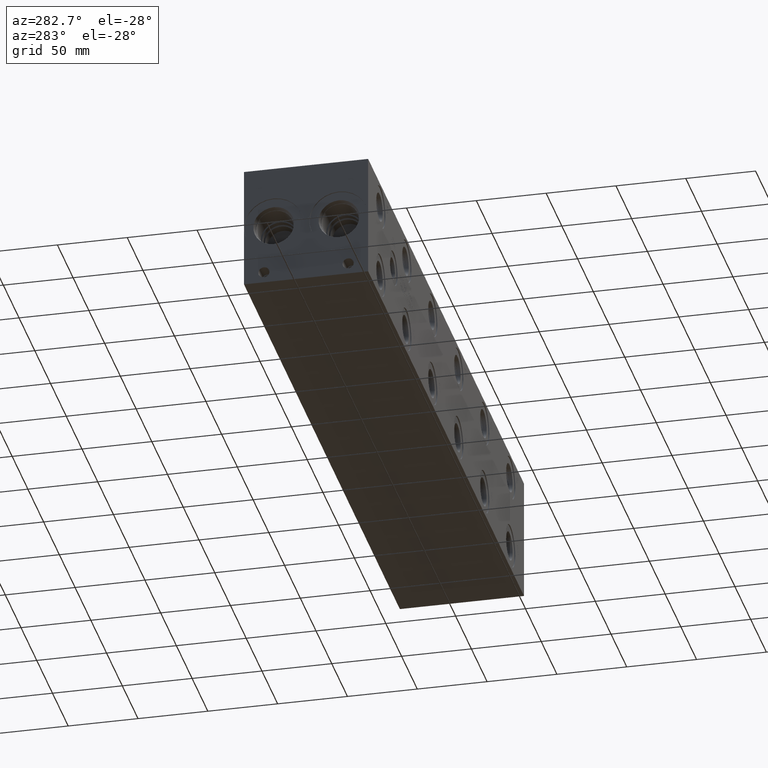
[diagram: clean part render]
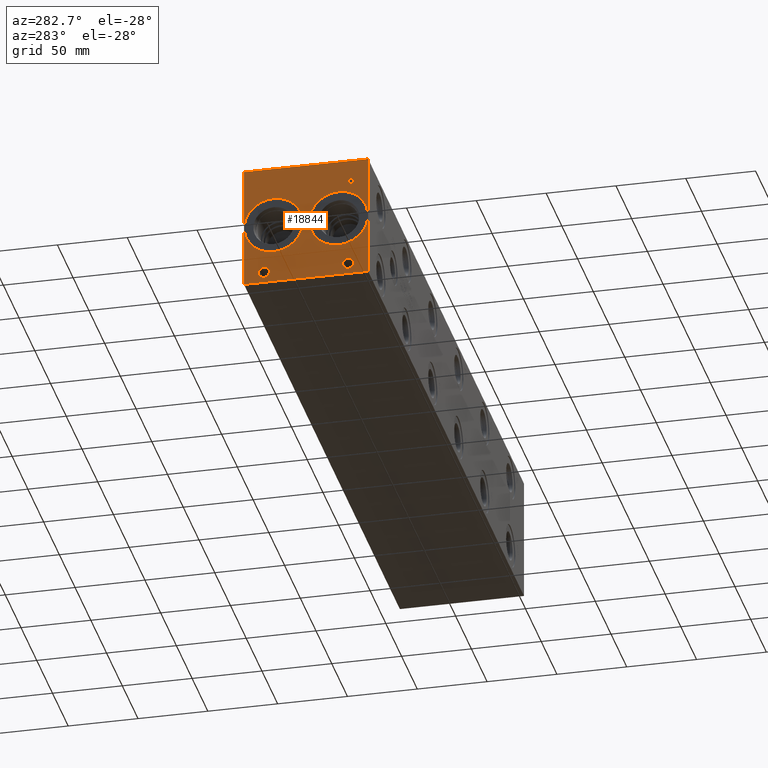
[diagram: same view with one face highlighted and labeled with its STEP entity id]
A machine part, auxiliary view. The second image highlights one B-rep face of the part: STEP entity #18844.
In plain terms, the highlighted planar face has unit normal (-1, 0, 0).
Its self-contained STEP definition (entity closure, byte-faithful):
#316=CIRCLE('',#19888,3.9624);
#317=CIRCLE('',#19889,3.9624);
#318=CIRCLE('',#19890,3.9624);
#319=CIRCLE('',#19891,3.9624);
#320=CIRCLE('',#19892,21.0185);
#321=CIRCLE('',#19893,21.0185);
#322=CIRCLE('',#19894,21.0185);
#323=CIRCLE('',#19895,21.0185);
#959=FACE_BOUND('',#2987,.T.);
#960=FACE_BOUND('',#2988,.T.);
#961=FACE_BOUND('',#2989,.T.);
#962=FACE_BOUND('',#2990,.T.);
#963=FACE_BOUND('',#2991,.T.);
#964=FACE_BOUND('',#2992,.T.);
#1177=B_SPLINE_CURVE_WITH_KNOTS('',2,(#26209,#26210,#26211,#26212),
 .UNSPECIFIED.,.F.,.F.,(3,1,3),(0.,1.,2.),.UNSPECIFIED.);
#1179=B_SPLINE_CURVE_WITH_KNOTS('',2,(#26230,#26231,#26232,#26233),
 .UNSPECIFIED.,.F.,.F.,(3,1,3),(0.,1.,2.),.UNSPECIFIED.);
#1181=B_SPLINE_CURVE_WITH_KNOTS('',2,(#26279,#26280,#26281,#26282),
 .UNSPECIFIED.,.F.,.F.,(3,1,3),(0.,1.,2.),.UNSPECIFIED.);
#1183=B_SPLINE_CURVE_WITH_KNOTS('',2,(#26297,#26298,#26299,#26300),
 .UNSPECIFIED.,.F.,.F.,(3,1,3),(0.,1.,2.),.UNSPECIFIED.);
#1941=FACE_OUTER_BOUND('',#2986,.T.);
#2986=EDGE_LOOP('',(#12390,#12391,#12392,#12393));
#2987=EDGE_LOOP('',(#12394,#12395,#12396,#12397,#12398,#12399,#12400,#12401));
#2988=EDGE_LOOP('',(#12402,#12403));
#2989=EDGE_LOOP('',(#12404,#12405));
#2990=EDGE_LOOP('',(#12406,#12407));
#2991=EDGE_LOOP('',(#12408,#12409));
#2992=EDGE_LOOP('',(#12410,#12411,#12412,#12413,#12414,#12415,#12416,#12417,
#12418));
#4224=LINE('',#26059,#5855);
#4228=LINE('',#26067,#5859);
#4231=LINE('',#26073,#5862);
#4234=LINE('',#26079,#5865);
#4237=LINE('',#26085,#5868);
#4240=LINE('',#26091,#5871);
#4243=LINE('',#26097,#5874);
#4246=LINE('',#26102,#5877);
#4264=LINE('',#26242,#5895);
#4267=LINE('',#26248,#5898);
#4270=LINE('',#26254,#5901);
#4273=LINE('',#26260,#5904);
#4276=LINE('',#26266,#5907);
#4280=LINE('',#26309,#5911);
#4281=LINE('',#26311,#5912);
#4282=LINE('',#26313,#5913);
#4283=LINE('',#26314,#5914);
#5855=VECTOR('',#21395,10.);
#5859=VECTOR('',#21401,10.);
#5862=VECTOR('',#21406,10.);
#5865=VECTOR('',#21411,10.);
#5868=VECTOR('',#21416,10.);
#5871=VECTOR('',#21421,10.);
#5874=VECTOR('',#21426,10.);
#5877=VECTOR('',#21431,10.);
#5895=VECTOR('',#21459,10.);
#5898=VECTOR('',#21464,10.);
#5901=VECTOR('',#21469,10.);
#5904=VECTOR('',#21474,10.);
#5907=VECTOR('',#21479,10.);
#5911=VECTOR('',#21487,10.);
#5912=VECTOR('',#21488,10.);
#5913=VECTOR('',#21489,10.);
#5914=VECTOR('',#21490,10.);
#7486=VERTEX_POINT('',#26057);
#7487=VERTEX_POINT('',#26058);
#7490=VERTEX_POINT('',#26066);
#7492=VERTEX_POINT('',#26072);
#7494=VERTEX_POINT('',#26078);
#7496=VERTEX_POINT('',#26084);
#7498=VERTEX_POINT('',#26090);
#7500=VERTEX_POINT('',#26096);
#7516=VERTEX_POINT('',#26207);
#7517=VERTEX_POINT('',#26208);
#7520=VERTEX_POINT('',#26229);
#7522=VERTEX_POINT('',#26241);
#7524=VERTEX_POINT('',#26247);
#7526=VERTEX_POINT('',#26253);
#7528=VERTEX_POINT('',#26259);
#7530=VERTEX_POINT('',#26265);
#7532=VERTEX_POINT('',#26278);
#7534=VERTEX_POINT('',#26307);
#7535=VERTEX_POINT('',#26308);
#7536=VERTEX_POINT('',#26310);
#7537=VERTEX_POINT('',#26312);
#7538=VERTEX_POINT('',#26315);
#7539=VERTEX_POINT('',#26316);
#7540=VERTEX_POINT('',#26319);
#7541=VERTEX_POINT('',#26320);
#7542=VERTEX_POINT('',#26323);
#7543=VERTEX_POINT('',#26324);
#7544=VERTEX_POINT('',#26327);
#7545=VERTEX_POINT('',#26328);
#9441=EDGE_CURVE('',#7486,#7487,#4224,.T.);
#9445=EDGE_CURVE('',#7490,#7486,#4228,.T.);
#9448=EDGE_CURVE('',#7492,#7490,#4231,.T.);
#9451=EDGE_CURVE('',#7494,#7492,#4234,.T.);
#9454=EDGE_CURVE('',#7496,#7494,#4237,.T.);
#9457=EDGE_CURVE('',#7498,#7496,#4240,.T.);
#9460=EDGE_CURVE('',#7500,#7498,#4243,.T.);
#9463=EDGE_CURVE('',#7487,#7500,#4246,.T.);
#9486=EDGE_CURVE('',#7516,#7517,#1177,.T.);
#9490=EDGE_CURVE('',#7520,#7516,#1179,.T.);
#9493=EDGE_CURVE('',#7522,#7520,#4264,.T.);
#9496=EDGE_CURVE('',#7524,#7522,#4267,.T.);
#9499=EDGE_CURVE('',#7526,#7524,#4270,.T.);
#9502=EDGE_CURVE('',#7528,#7526,#4273,.T.);
#9505=EDGE_CURVE('',#7530,#7528,#4276,.T.);
#9508=EDGE_CURVE('',#7532,#7530,#1181,.T.);
#9511=EDGE_CURVE('',#7517,#7532,#1183,.T.);
#9513=EDGE_CURVE('',#7534,#7535,#4280,.T.);
#9514=EDGE_CURVE('',#7535,#7536,#4281,.T.);
#9515=EDGE_CURVE('',#7537,#7536,#4282,.T.);
#9516=EDGE_CURVE('',#7534,#7537,#4283,.T.);
#9517=EDGE_CURVE('',#7538,#7539,#316,.T.);
#9518=EDGE_CURVE('',#7539,#7538,#317,.T.);
#9519=EDGE_CURVE('',#7540,#7541,#318,.T.);
#9520=EDGE_CURVE('',#7541,#7540,#319,.T.);
#9521=EDGE_CURVE('',#7542,#7543,#320,.T.);
#9522=EDGE_CURVE('',#7543,#7542,#321,.T.);
#9523=EDGE_CURVE('',#7544,#7545,#322,.T.);
#9524=EDGE_CURVE('',#7545,#7544,#323,.T.);
#12390=ORIENTED_EDGE('',*,*,#9513,.T.);
#12391=ORIENTED_EDGE('',*,*,#9514,.T.);
#12392=ORIENTED_EDGE('',*,*,#9515,.F.);
#12393=ORIENTED_EDGE('',*,*,#9516,.F.);
#12394=ORIENTED_EDGE('',*,*,#9441,.T.);
#12395=ORIENTED_EDGE('',*,*,#9463,.T.);
#12396=ORIENTED_EDGE('',*,*,#9460,.T.);
#12397=ORIENTED_EDGE('',*,*,#9457,.T.);
#12398=ORIENTED_EDGE('',*,*,#9454,.T.);
#12399=ORIENTED_EDGE('',*,*,#9451,.T.);
#12400=ORIENTED_EDGE('',*,*,#9448,.T.);
#12401=ORIENTED_EDGE('',*,*,#9445,.T.);
#12402=ORIENTED_EDGE('',*,*,#9517,.T.);
#12403=ORIENTED_EDGE('',*,*,#9518,.T.);
#12404=ORIENTED_EDGE('',*,*,#9519,.T.);
#12405=ORIENTED_EDGE('',*,*,#9520,.T.);
#12406=ORIENTED_EDGE('',*,*,#9521,.T.);
#12407=ORIENTED_EDGE('',*,*,#9522,.T.);
#12408=ORIENTED_EDGE('',*,*,#9523,.T.);
#12409=ORIENTED_EDGE('',*,*,#9524,.T.);
#12410=ORIENTED_EDGE('',*,*,#9486,.T.);
#12411=ORIENTED_EDGE('',*,*,#9511,.T.);
#12412=ORIENTED_EDGE('',*,*,#9508,.T.);
#12413=ORIENTED_EDGE('',*,*,#9505,.T.);
#12414=ORIENTED_EDGE('',*,*,#9502,.T.);
#12415=ORIENTED_EDGE('',*,*,#9499,.T.);
#12416=ORIENTED_EDGE('',*,*,#9496,.T.);
#12417=ORIENTED_EDGE('',*,*,#9493,.T.);
#12418=ORIENTED_EDGE('',*,*,#9490,.T.);
#17686=PLANE('',#19887);
#18844=ADVANCED_FACE('',(#1941,#959,#960,#961,#962,#963,#964),#17686,.T.);
#19887=AXIS2_PLACEMENT_3D('',#26306,#21485,#21486);
#19888=AXIS2_PLACEMENT_3D('',#26317,#21491,#21492);
#19889=AXIS2_PLACEMENT_3D('',#26318,#21493,#21494);
#19890=AXIS2_PLACEMENT_3D('',#26321,#21495,#21496);
#19891=AXIS2_PLACEMENT_3D('',#26322,#21497,#21498);
#19892=AXIS2_PLACEMENT_3D('',#26325,#21499,#21500);
#19893=AXIS2_PLACEMENT_3D('',#26326,#21501,#21502);
#19894=AXIS2_PLACEMENT_3D('',#26329,#21503,#21504);
#19895=AXIS2_PLACEMENT_3D('',#26330,#21505,#21506);
#21395=DIRECTION('',(0.,1.,1.0524411238433E-14));
#21401=DIRECTION('',(0.,3.17280044688051E-15,-1.));
#21406=DIRECTION('',(0.,1.,4.16909044227778E-15));
#21411=DIRECTION('',(0.,0.,-1.));
#21416=DIRECTION('',(0.,-1.,-3.47984565141734E-15));
#21421=DIRECTION('',(0.,0.,1.));
#21426=DIRECTION('',(0.,1.,0.));
#21431=DIRECTION('',(0.,-3.17280044688052E-15,1.));
#21459=DIRECTION('',(0.,-1.,-5.56775304226775E-15));
#21464=DIRECTION('',(0.,-3.14708893596576E-15,1.));
#21469=DIRECTION('',(0.,1.,1.0524411238433E-14));
#21474=DIRECTION('',(0.,2.8141360485375E-15,-1.));
#21479=DIRECTION('',(0.,1.,0.));
#21485=DIRECTION('center_axis',(-1.,0.,0.));
#21486=DIRECTION('ref_axis',(0.,-1.,0.));
#21487=DIRECTION('',(0.,-1.,0.));
#21488=DIRECTION('',(0.,0.,1.));
#21489=DIRECTION('',(0.,-1.,0.));
#21490=DIRECTION('',(0.,0.,1.));
#21491=DIRECTION('center_axis',(1.,0.,0.));
#21492=DIRECTION('ref_axis',(0.,1.,0.));
#21493=DIRECTION('center_axis',(1.,0.,0.));
#21494=DIRECTION('ref_axis',(0.,1.,0.));
#21495=DIRECTION('center_axis',(1.,0.,0.));
#21496=DIRECTION('ref_axis',(0.,1.,0.));
#21497=DIRECTION('center_axis',(1.,0.,0.));
#21498=DIRECTION('ref_axis',(0.,1.,0.));
#21499=DIRECTION('center_axis',(1.,0.,0.));
#21500=DIRECTION('ref_axis',(0.,0.,1.));
#21501=DIRECTION('center_axis',(1.,0.,0.));
#21502=DIRECTION('ref_axis',(0.,0.,1.));
#21503=DIRECTION('center_axis',(1.,0.,0.));
#21504=DIRECTION('ref_axis',(0.,0.,1.));
#21505=DIRECTION('center_axis',(1.,0.,0.));
#21506=DIRECTION('ref_axis',(0.,0.,1.));
#26057=CARTESIAN_POINT('',(0.,77.548834728547,68.58));
#26058=CARTESIAN_POINT('',(0.,78.3927569200865,68.58));
#26059=CARTESIAN_POINT('',(0.,83.2244173642732,68.58));
#26066=CARTESIAN_POINT('',(0.,77.548834728547,74.1787033194815));
#26067=CARTESIAN_POINT('',(0.,77.5488347285471,37.0893516597408));
#26072=CARTESIAN_POINT('',(0.,75.4184457816119,74.1787033194815));
#26073=CARTESIAN_POINT('',(0.,82.1592228908058,74.1787033194816));
#26078=CARTESIAN_POINT('',(0.,75.4184457816119,74.9299999046326));
#26079=CARTESIAN_POINT('',(0.,75.4184457816119,37.4649999523163));
#26084=CARTESIAN_POINT('',(0.,80.5231458670216,74.9299999046326));
#26085=CARTESIAN_POINT('',(0.,84.7115729335107,74.9299999046326));
#26090=CARTESIAN_POINT('',(0.,80.5231458670216,74.1787033194815));
#26091=CARTESIAN_POINT('',(0.,80.5231458670216,37.0893516597408));
#26096=CARTESIAN_POINT('',(0.,78.3927569200865,74.1787033194815));
#26097=CARTESIAN_POINT('',(0.,83.6463784600433,74.1787033194815));
#26102=CARTESIAN_POINT('',(0.,78.3927569200866,34.29));
#26207=CARTESIAN_POINT('',(0.,10.8314327976406,74.5337681439707));
#26208=CARTESIAN_POINT('',(0.,10.074990345468,73.0157373726039));
#26209=CARTESIAN_POINT('Ctrl Pts',(0.,10.8314327976406,74.5337681439707));
#26210=CARTESIAN_POINT('Ctrl Pts',(0.,10.4763679731514,74.2919123939564));
#26211=CARTESIAN_POINT('Ctrl Pts',(0.,10.074990345468,73.5457616758269));
#26212=CARTESIAN_POINT('Ctrl Pts',(0.,10.074990345468,73.0157373726039));
#26229=CARTESIAN_POINT('',(0.,12.4935478456117,74.9299999046326));
#26230=CARTESIAN_POINT('Ctrl Pts',(0.,12.4935478456117,74.9299999046326));
#26231=CARTESIAN_POINT('Ctrl Pts',(0.,11.9275024732376,74.9299999046326));
#26232=CARTESIAN_POINT('Ctrl Pts',(0.,11.1350389519139,74.7447486918556));
#26233=CARTESIAN_POINT('Ctrl Pts',(0.,10.8314327976406,74.5337681439707));
#26241=CARTESIAN_POINT('',(0.,14.0887666223022,74.9299999046326));
#26242=CARTESIAN_POINT('',(0.,51.4943833111509,74.9299999046328));
#26247=CARTESIAN_POINT('',(0.,14.0887666223022,68.58));
#26248=CARTESIAN_POINT('',(0.,14.0887666223023,34.2899999999999));
#26253=CARTESIAN_POINT('',(0.,13.2448444307627,68.58));
#26254=CARTESIAN_POINT('',(0.,51.072422215381,68.5800000000004));
#26259=CARTESIAN_POINT('',(0.,13.2448444307627,70.9470988299279));
#26260=CARTESIAN_POINT('',(0.,13.2448444307628,35.4735494149638));
#26265=CARTESIAN_POINT('',(0.,12.5295689147628,70.9470988299279));
#26266=CARTESIAN_POINT('',(0.,50.7147844573814,70.9470988299279));
#26278=CARTESIAN_POINT('',(0.,10.6307439837989,71.6057698086904));
#26279=CARTESIAN_POINT('Ctrl Pts',(0.,10.6307439837989,71.6057698086904));
#26280=CARTESIAN_POINT('Ctrl Pts',(0.,10.9600794731802,71.2815801863307));
#26281=CARTESIAN_POINT('Ctrl Pts',(0.,11.8503144679139,70.9470988299279));
#26282=CARTESIAN_POINT('Ctrl Pts',(0.,12.5295689147628,70.9470988299279));
#26297=CARTESIAN_POINT('Ctrl Pts',(0.,10.074990345468,73.0157373726039));
#26298=CARTESIAN_POINT('Ctrl Pts',(0.,10.074990345468,72.6040680108774));
#26299=CARTESIAN_POINT('Ctrl Pts',(0.,10.3683047656982,71.8630631597695));
#26300=CARTESIAN_POINT('Ctrl Pts',(0.,10.6307439837989,71.6057698086904));
#26306=CARTESIAN_POINT('Origin',(0.,88.9,0.));
#26307=CARTESIAN_POINT('',(0.,88.9,0.));
#26308=CARTESIAN_POINT('',(0.,0.,0.));
#26309=CARTESIAN_POINT('',(0.,88.9,0.));
#26310=CARTESIAN_POINT('',(0.,0.,88.9));
#26311=CARTESIAN_POINT('',(0.,0.,0.));
#26312=CARTESIAN_POINT('',(0.,88.9,88.9));
#26313=CARTESIAN_POINT('',(0.,88.9,88.9));
#26314=CARTESIAN_POINT('',(0.,88.9,0.));
#26315=CARTESIAN_POINT('',(0.,18.2372,7.92479999999999));
#26316=CARTESIAN_POINT('',(0.,10.3124,7.92479999999999));
#26317=CARTESIAN_POINT('Origin',(0.,14.2748,7.92479999999999));
#26318=CARTESIAN_POINT('Origin',(0.,14.2748,7.92479999999999));
#26319=CARTESIAN_POINT('',(0.,78.5876,7.92479999999999));
#26320=CARTESIAN_POINT('',(0.,70.6628,7.92479999999999));
#26321=CARTESIAN_POINT('Origin',(0.,74.6252,7.92479999999999));
#26322=CARTESIAN_POINT('Origin',(0.,74.6252,7.92479999999999));
#26323=CARTESIAN_POINT('',(0.,21.082,65.4685));
#26324=CARTESIAN_POINT('',(0.,21.082,23.4315));
#26325=CARTESIAN_POINT('Origin',(0.,21.082,44.45));
#26326=CARTESIAN_POINT('Origin',(0.,21.082,44.45));
#26327=CARTESIAN_POINT('',(0.,67.818,65.4685));
#26328=CARTESIAN_POINT('',(0.,67.818,23.4315));
#26329=CARTESIAN_POINT('Origin',(0.,67.818,44.45));
#26330=CARTESIAN_POINT('Origin',(0.,67.818,44.45));